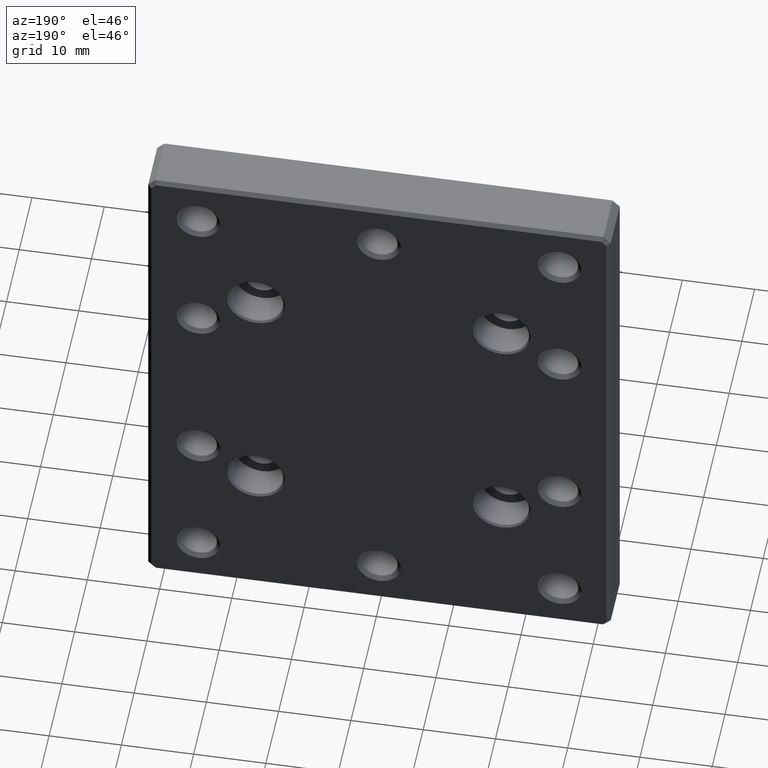
[diagram: clean part render]
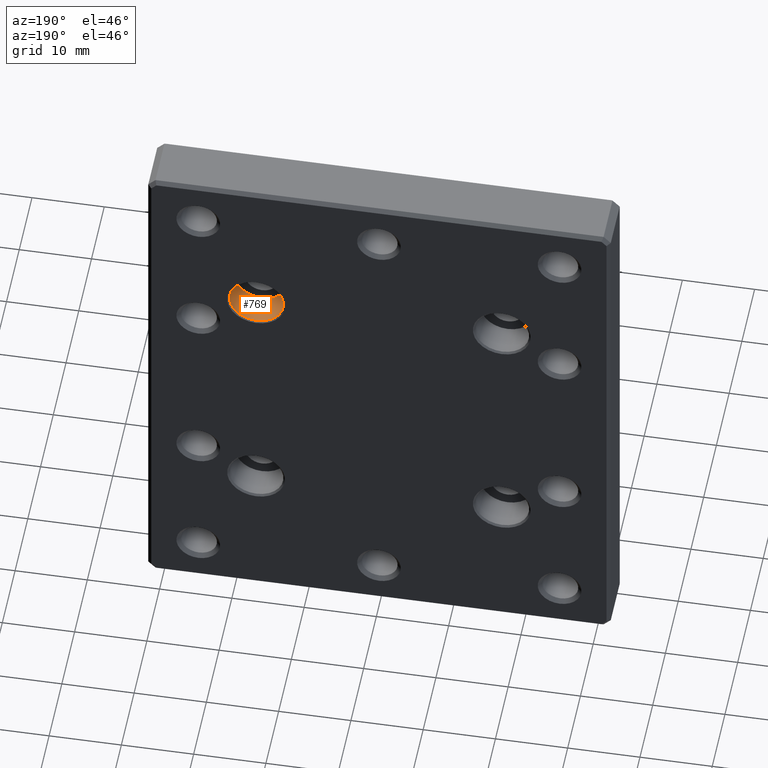
[diagram: same view with one face highlighted and labeled with its STEP entity id]
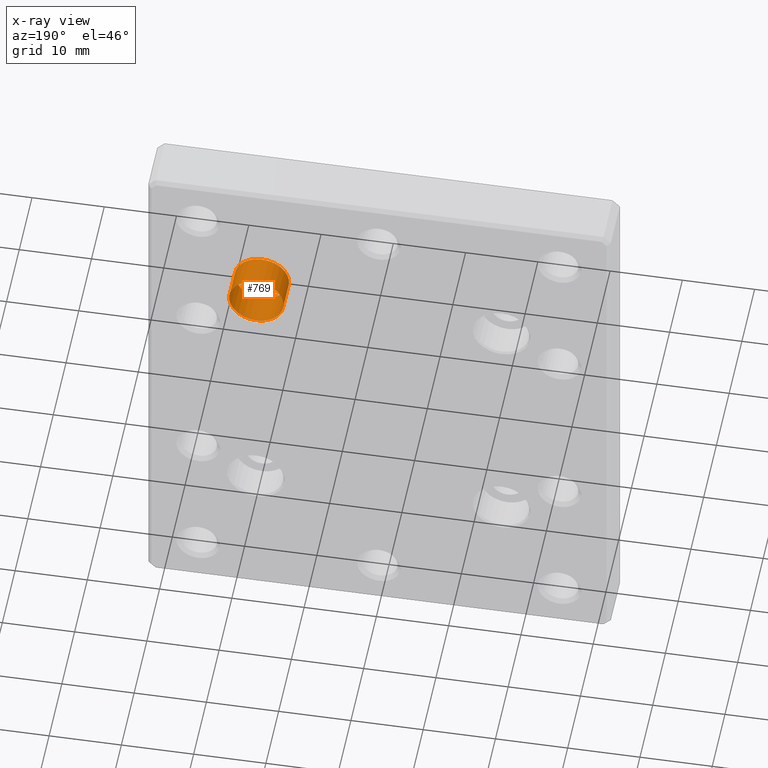
[diagram: x-ray of the same camera — body ghosted, the highlighted face saturated]
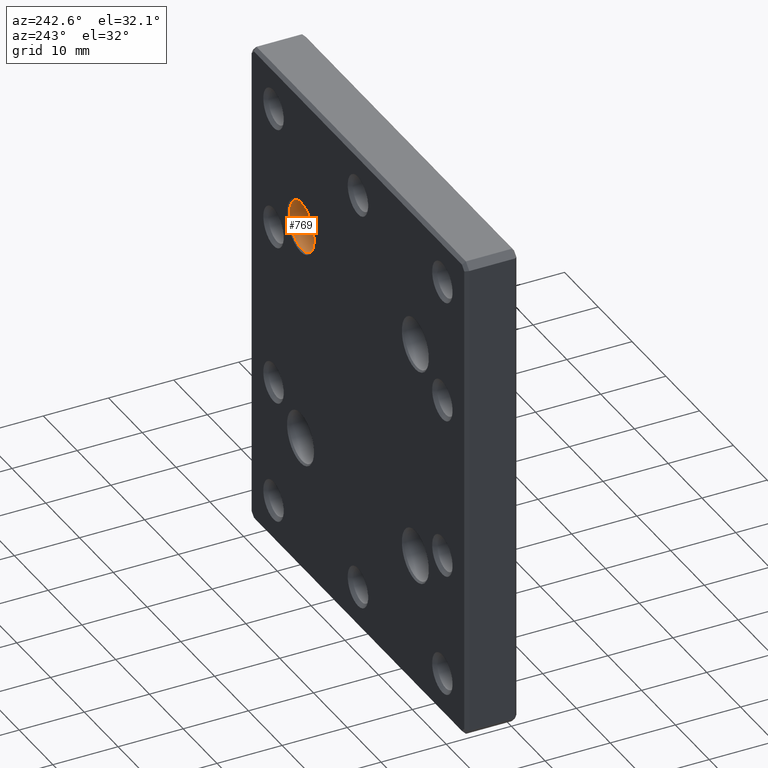
[diagram: same view with one face highlighted and labeled with its STEP entity id]
A machine part, auxiliary view. The second image highlights one B-rep face of the part: STEP entity #769.
The next image is the same camera in x-ray: the body ghosted, the highlighted face saturated — about 0% of this face is hidden behind the body in this view.
A second angle (auxiliary view) of the same face is appended — the face is thin or edge-on in the first view.
In plain terms, the highlighted cylindrical surface (bore or boss wall) has radius 3.75 mm, axis along (-0, 1, -0).
Its self-contained STEP definition (entity closure, byte-faithful):
#80 = DIRECTION ( 'NONE',  ( -0.000000000000000000, 1.000000000000000000, -0.000000000000000000 ) ) ;
#128 = AXIS2_PLACEMENT_3D ( 'NONE', #387, #1537, #265 ) ;
#145 = FACE_OUTER_BOUND ( 'NONE', #956, .T. ) ;
#163 = ORIENTED_EDGE ( 'NONE', *, *, #957, .T. ) ;
#203 = AXIS2_PLACEMENT_3D ( 'NONE', #674, #1587, #681 ) ;
#265 = DIRECTION ( 'NONE',  ( 0.000000000000000000, 0.000000000000000000, 1.000000000000000000 ) ) ;
#387 = CARTESIAN_POINT ( 'NONE',  ( 17.00000000000000355, 8.000000000000000000, 17.00000000000000000 ) ) ;
#455 = CIRCLE ( 'NONE', #203, 3.750000000000013767 ) ;
#599 = CARTESIAN_POINT ( 'NONE',  ( 17.00000000000000355, 3.400000000000000355, 20.75000000000001421 ) ) ;
#610 = DIRECTION ( 'NONE',  ( 0.000000000000000000, 0.000000000000000000, 1.000000000000000000 ) ) ;
#629 = VERTEX_POINT ( 'NONE', #636 ) ;
#636 = CARTESIAN_POINT ( 'NONE',  ( 17.00000000000000355, 7.749999999999998224, 20.75000000000001421 ) ) ;
#658 = AXIS2_PLACEMENT_3D ( 'NONE', #1519, #80, #610 ) ;
#674 = CARTESIAN_POINT ( 'NONE',  ( 17.00000000000000355, 7.749999999999998224, 17.00000000000000000 ) ) ;
#681 = DIRECTION ( 'NONE',  ( 0.000000000000000000, 0.000000000000000000, 1.000000000000000000 ) ) ;
#736 = CIRCLE ( 'NONE', #658, 3.750000000000013767 ) ;
#769 = ADVANCED_FACE ( 'NONE', ( #145, #1561 ), #1425, .F. ) ;
#956 = EDGE_LOOP ( 'NONE', ( #163 ) ) ;
#957 = EDGE_CURVE ( 'NONE', #629, #629, #455, .T. ) ;
#1119 = VERTEX_POINT ( 'NONE', #599 ) ;
#1159 = EDGE_CURVE ( 'NONE', #1119, #1119, #736, .T. ) ;
#1389 = EDGE_LOOP ( 'NONE', ( #1625 ) ) ;
#1425 = CYLINDRICAL_SURFACE ( 'NONE', #128, 3.750000000000013767 ) ;
#1519 = CARTESIAN_POINT ( 'NONE',  ( 17.00000000000000355, 3.400000000000000355, 17.00000000000000000 ) ) ;
#1537 = DIRECTION ( 'NONE',  ( -0.000000000000000000, 1.000000000000000000, -0.000000000000000000 ) ) ;
#1561 = FACE_OUTER_BOUND ( 'NONE', #1389, .T. ) ;
#1587 = DIRECTION ( 'NONE',  ( 0.000000000000000000, 1.000000000000000000, 0.000000000000000000 ) ) ;
#1625 = ORIENTED_EDGE ( 'NONE', *, *, #1159, .F. ) ;